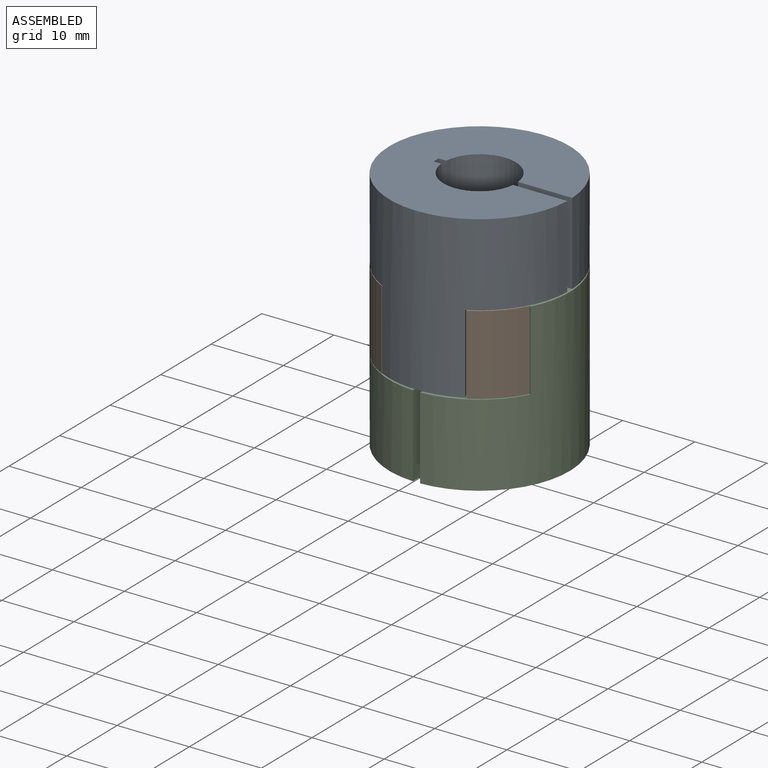
[diagram: assembled view]
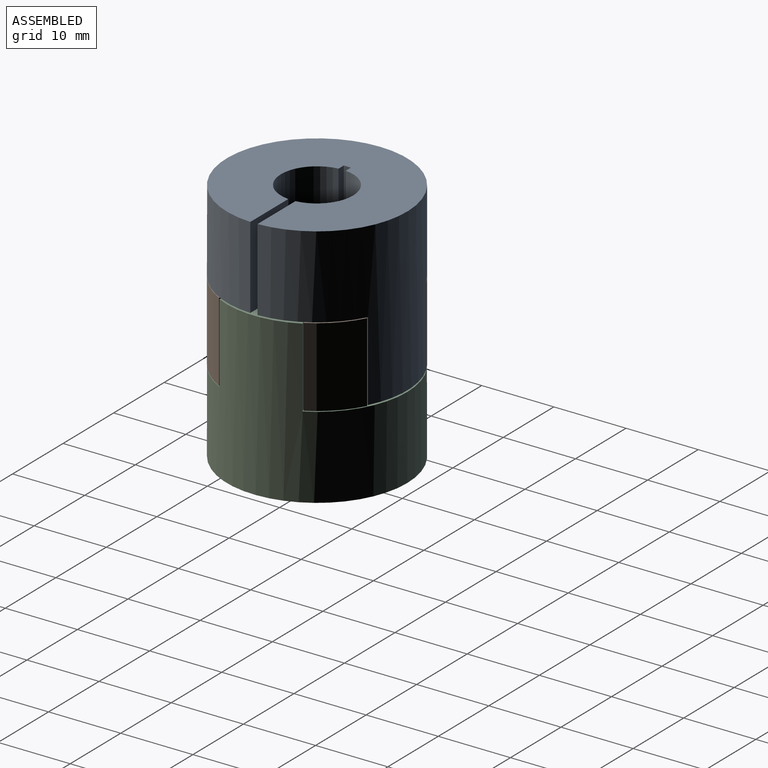
[diagram: assembled view, second angle]
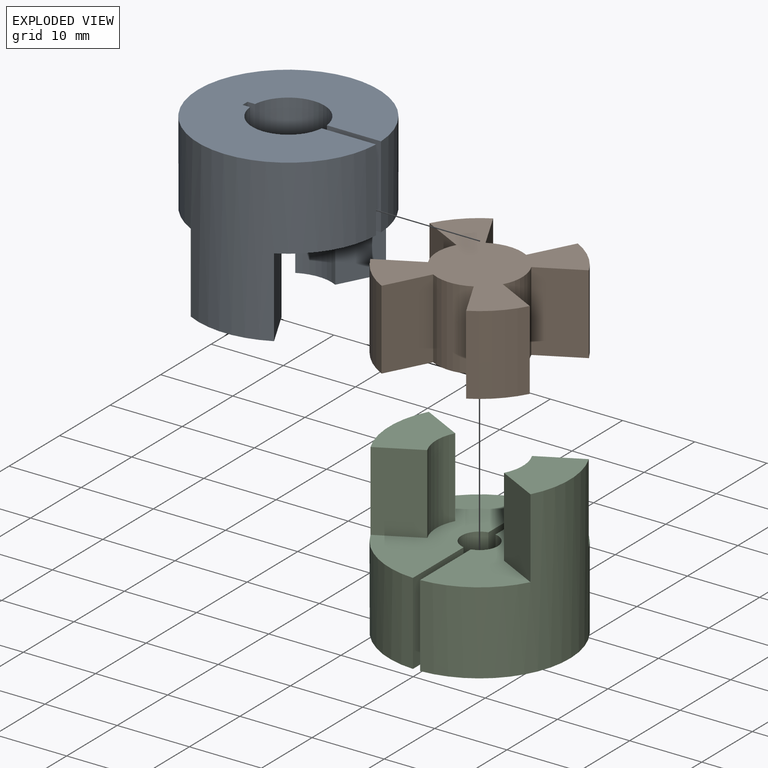
[diagram: exploded view]
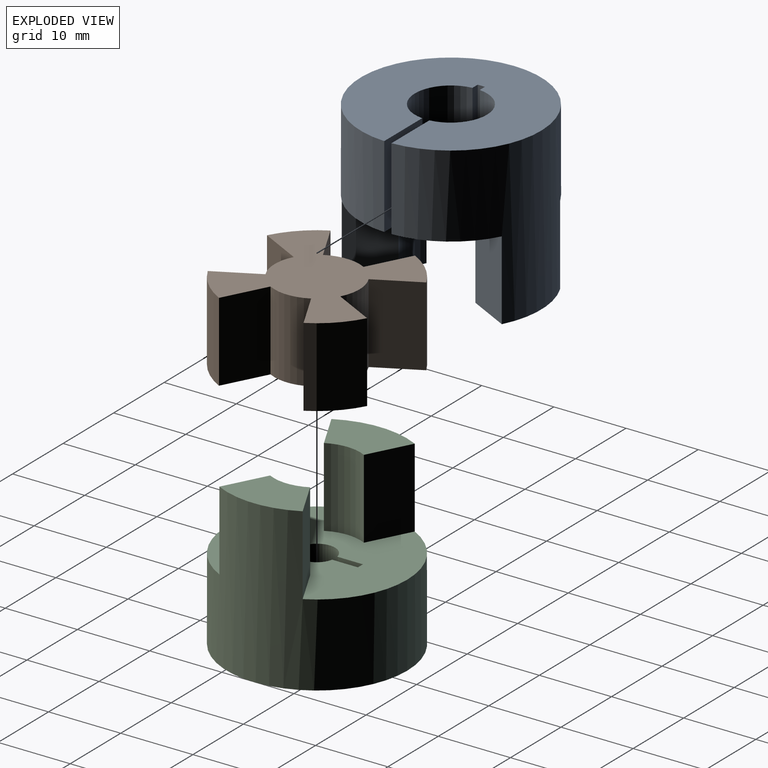
[diagram: exploded view, second angle]
ASSEMBLY  parts=3 mates=2
PART A: 18 faces, bbox 25x25x22.4 mm
  f0: plane 11.4x7.52mm, normal (1,0,0), area 85.7mm2, adj f2,f3,f4,f17
  f1: plane 11.4x7.52mm, normal (-1,0,0), area 85.7mm2, adj f2,f3,f4,f16
  f2: plane 24.99x22.18mm, normal (0,0,1), area 288.4mm2, adj f0,f1,f4,f5,f6,f7,f9,f10
  f3: plane 25x24.99mm, normal (0,0,-1), area 403.8mm2, adj f0,f1,f4,f13,f14,f15,f16,f17
  f4: cylinder r=12.5mm len=25mm, axis (0,0,-1), area 1147.9mm2, adj f0,f1,f2,f3,f6,f7,f8,f9
  f5: cylinder r=6mm len=11mm, axis (0,0,-1), area 63.4mm2, adj f2,f6,f7,f8
  f6: plane 11x5.77mm, normal (0.46,0.89,0), area 71.5mm2, adj f2,f4,f5,f8
  f7: plane 11x5.77mm, normal (0.46,-0.89,0), area 71.5mm2, adj f2,f4,f5,f8
  f8: plane 11.54x7.18mm, normal (0,0,1), area 57.7mm2, adj f4,f5,f6,f7
  f9: plane 11x5.77mm, normal (-0.46,0.89,0), area 71.5mm2, adj f2,f4,f10,f12
  f10: cylinder r=6mm len=11mm, axis (0,0,-1), area 63.4mm2, adj f2,f9,f11,f12
  f11: plane 11x5.77mm, normal (-0.46,-0.89,0), area 71.5mm2, adj f2,f4,f10,f12
  f12: plane 11.54x7.18mm, normal (0,0,1), area 57.7mm2, adj f4,f9,f10,f11
  f13: plane 11.4x1.04mm, normal (1,0,0), area 11.8mm2, adj f2,f3,f15,f17
  f14: plane 11.4x1.04mm, normal (-1,0,0), area 11.8mm2, adj f2,f3,f15,f16
  f15: plane 11.4x1mm, normal (0,-1,0), area 11.4mm2, adj f2,f3,f13,f14
  f16: cylinder r=5mm len=11.4mm, axis (0,0,1), area 167.7mm2, adj f1,f2,f3,f14
  f17: cylinder r=5mm len=11.4mm, axis (0,0,1), area 167.7mm2, adj f0,f2,f3,f13
PART B: 18 faces, bbox 22.1x22.1x11 mm
  f0: cylinder r=12.5mm len=11mm, axis (0,0,-1), area 81.8mm2, adj f3,f4,f8,f16
  f1: cylinder r=12.5mm len=11mm, axis (0,0,-1), area 81.8mm2, adj f3,f4,f7,f13
  f2: cylinder r=12.5mm len=11mm, axis (0,0,-1), area 81.8mm2, adj f3,f4,f10,f14
  f3: plane 22.08x22.08mm, normal (0,0,1), area 252.4mm2, adj f0,f1,f2,f5,f6,f7,f8,f9
  f4: plane 22.08x22.08mm, normal (0,0,-1), area 252.4mm2, adj f0,f1,f2,f5,f6,f7,f8,f9
  f5: cylinder r=12.5mm len=11mm, axis (0,0,-1), area 81.8mm2, adj f3,f4,f11,f15
  f6: cylinder r=5.9mm len=11mm, axis (0,0,-1), area 64.5mm2, adj f3,f4,f7,f8
  f7: plane 11x5.85mm, normal (0.46,0.89,0), area 72.6mm2, adj f1,f3,f4,f6
  f8: plane 11x5.85mm, normal (0.46,-0.89,0), area 72.6mm2, adj f0,f3,f4,f6
  f9: cylinder r=5.9mm len=11mm, axis (0,0,-1), area 64.5mm2, adj f3,f4,f10,f11
  f10: plane 11x5.85mm, normal (-0.46,0.89,0), area 72.6mm2, adj f2,f3,f4,f9
  f11: plane 11x5.85mm, normal (-0.46,-0.89,0), area 72.6mm2, adj f3,f4,f5,f9
  f12: cylinder r=5.9mm len=11mm, axis (0,0,1), area 64.5mm2, adj f3,f4,f13,f14
  f13: plane 11x5.85mm, normal (-0.89,-0.46,0), area 72.6mm2, adj f1,f3,f4,f12
  f14: plane 11x5.85mm, normal (0.89,-0.46,0), area 72.6mm2, adj f2,f3,f4,f12
  f15: plane 11x5.85mm, normal (0.89,0.46,0), area 72.6mm2, adj f3,f4,f5,f17
  f16: plane 11x5.85mm, normal (-0.89,0.46,0), area 72.6mm2, adj f0,f3,f4,f17
  f17: cylinder r=5.9mm len=11mm, axis (0,0,1), area 64.5mm2, adj f3,f4,f15,f16
PART C: 18 faces, bbox 25x25x22.4 mm
  f0: plane 11.4x10.04mm, normal (1,0,0), area 114.5mm2, adj f2,f3,f4,f17
  f1: plane 11.4x10.04mm, normal (-1,0,0), area 114.5mm2, adj f2,f3,f4,f16
  f2: plane 24.99x22.18mm, normal (0,0,1), area 342.3mm2, adj f0,f1,f4,f5,f6,f7,f9,f10
  f3: plane 25x24.99mm, normal (0,0,-1), area 457.7mm2, adj f0,f1,f4,f13,f14,f15,f16,f17
  f4: cylinder r=12.5mm len=25mm, axis (0,0,-1), area 1147.9mm2, adj f0,f1,f2,f3,f6,f7,f8,f9
  f5: cylinder r=6mm len=11mm, axis (0,0,-1), area 63.4mm2, adj f2,f6,f7,f8
  f6: plane 11x5.77mm, normal (0.46,0.89,0), area 71.5mm2, adj f2,f4,f5,f8
  f7: plane 11x5.77mm, normal (0.46,-0.89,0), area 71.5mm2, adj f2,f4,f5,f8
  f8: plane 11.54x7.18mm, normal (0,0,1), area 57.7mm2, adj f4,f5,f6,f7
  f9: plane 11x5.77mm, normal (-0.46,0.89,0), area 71.5mm2, adj f2,f4,f10,f12
  f10: cylinder r=6mm len=11mm, axis (0,0,-1), area 63.4mm2, adj f2,f9,f11,f12
  f11: plane 11x5.77mm, normal (-0.46,-0.89,0), area 71.5mm2, adj f2,f4,f10,f12
  f12: plane 11.54x7.18mm, normal (0,0,1), area 57.7mm2, adj f4,f9,f10,f11
  f13: plane 11.4x3.56mm, normal (1,0,0), area 40.6mm2, adj f2,f3,f15,f17
  f14: plane 11.4x3.56mm, normal (-1,0,0), area 40.6mm2, adj f2,f3,f15,f16
  f15: plane 11.4x1mm, normal (0,-1,0), area 11.4mm2, adj f2,f3,f13,f14
  f16: cylinder r=2.5mm len=11.4mm, axis (0,0,1), area 78.1mm2, adj f1,f2,f3,f14
  f17: cylinder r=2.5mm len=11.4mm, axis (0,0,1), area 78.1mm2, adj f0,f2,f3,f13
PLACE A rot(axis=(0.71,-0.71,0),180deg) t=(-16.73,-1.51,35.03)mm
PLACE B t=(-16.73,-1.51,12.53)mm
PLACE C t=(-16.73,-1.51,1.03)mm
MATE fastened B.f0 <-> A.f16  axis (0,0,1) through (-16.73,-1.51,23.53)mm
MATE fastened A.f4 <-> C.f4  axis (0,0,-1) through (-16.73,-1.51,12.63)mm
